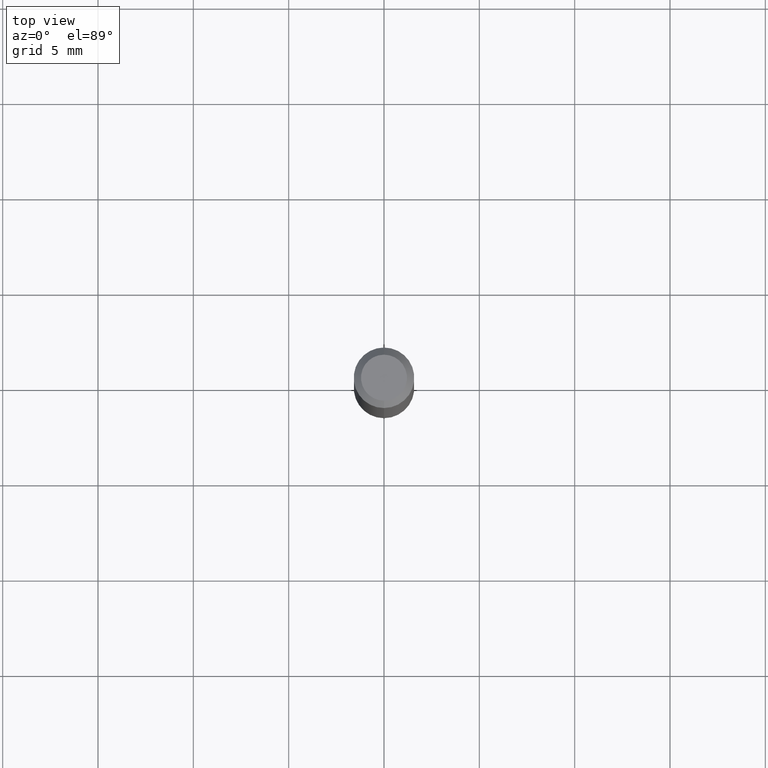
[diagram: clean part render]
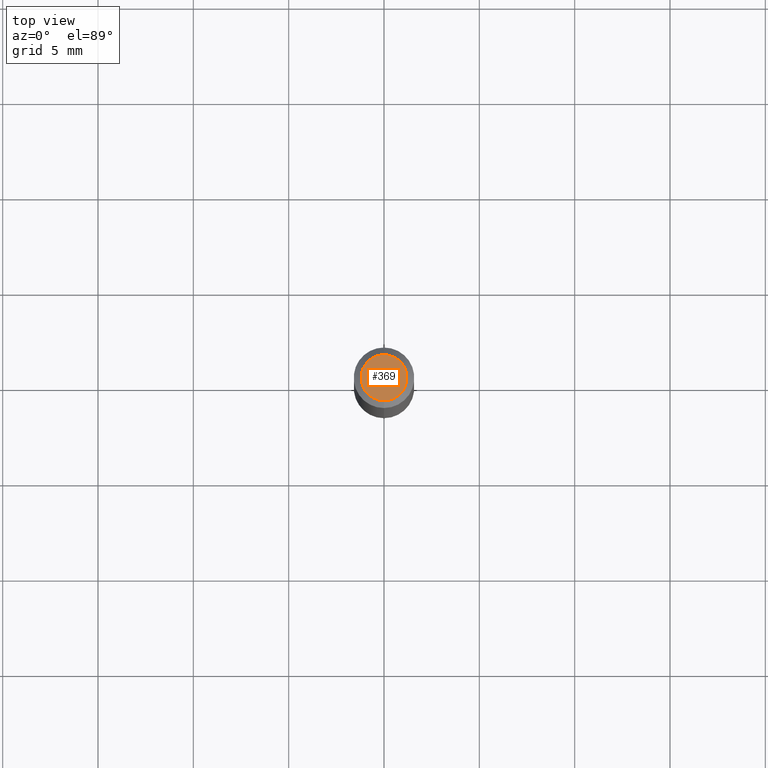
[diagram: same view with one face highlighted and labeled with its STEP entity id]
A machine part, top view. The second image highlights one B-rep face of the part: STEP entity #369.
In plain terms, the highlighted planar face has unit normal (0, -0, -1).
Its self-contained STEP definition (entity closure, byte-faithful):
#10 = CIRCLE ( 'NONE', #148, 0.04749999999999999362 ) ;
#39 = VERTEX_POINT ( 'NONE', #246 ) ;
#84 = DIRECTION ( 'NONE',  ( -2.445464325019758025E-29, 3.491487756127019811E-15, 1.000000000000000000 ) ) ;
#103 = ORIENTED_EDGE ( 'NONE', *, *, #435, .T. ) ;
#118 = CARTESIAN_POINT ( 'NONE',  ( 1.601777402267372811E-45, -2.286922009386618917E-31, -6.549992923141217135E-17 ) ) ;
#148 = AXIS2_PLACEMENT_3D ( 'NONE', #118, #84, #278 ) ;
#153 = CARTESIAN_POINT ( 'NONE',  ( 3.316907271900976096E-16, 0.04749999999999999362, -1.985956330317395178E-16 ) ) ;
#172 = VERTEX_POINT ( 'NONE', #266 ) ;
#234 = FACE_OUTER_BOUND ( 'NONE', #320, .T. ) ;
#246 = CARTESIAN_POINT ( 'NONE',  ( 3.840629472727447874E-16, 0.04749999999999999362, -2.313455976474456035E-16 ) ) ;
#266 = CARTESIAN_POINT ( 'NONE',  ( -3.773273898774340269E-16, -0.04749999999999999362, 1.003457391846212608E-16 ) ) ;
#278 = DIRECTION ( 'NONE',  ( -6.982962677686266711E-15, -1.000000000000000000, 3.491487756127020205E-15 ) ) ;
#286 = CARTESIAN_POINT ( 'NONE',  ( 1.601777402267372811E-45, -2.286922009386618917E-31, -6.549992923141217135E-17 ) ) ;
#308 = DIRECTION ( 'NONE',  ( 6.982962677686265922E-15, 1.000000000000000000, -3.491487756127019811E-15 ) ) ;
#320 = EDGE_LOOP ( 'NONE', ( #346, #103 ) ) ;
#346 = ORIENTED_EDGE ( 'NONE', *, *, #403, .T. ) ;
#369 = ADVANCED_FACE ( 'NONE', ( #234 ), #472, .F. ) ;
#403 = EDGE_CURVE ( 'NONE', #39, #172, #10, .T. ) ;
#408 = DIRECTION ( 'NONE',  ( -2.445464325019758025E-29, 3.491487756127019811E-15, 1.000000000000000000 ) ) ;
#435 = EDGE_CURVE ( 'NONE', #172, #39, #449, .T. ) ;
#449 = CIRCLE ( 'NONE', #511, 0.04749999999999999362 ) ;
#454 = DIRECTION ( 'NONE',  ( -6.982962677686266711E-15, -1.000000000000000000, 3.491487756127020205E-15 ) ) ;
#472 = PLANE ( 'NONE',  #496 ) ;
#475 = DIRECTION ( 'NONE',  ( 2.445464325019757745E-29, -3.491487756127019811E-15, -1.000000000000000000 ) ) ;
#496 = AXIS2_PLACEMENT_3D ( 'NONE', #153, #475, #308 ) ;
#511 = AXIS2_PLACEMENT_3D ( 'NONE', #286, #408, #454 ) ;